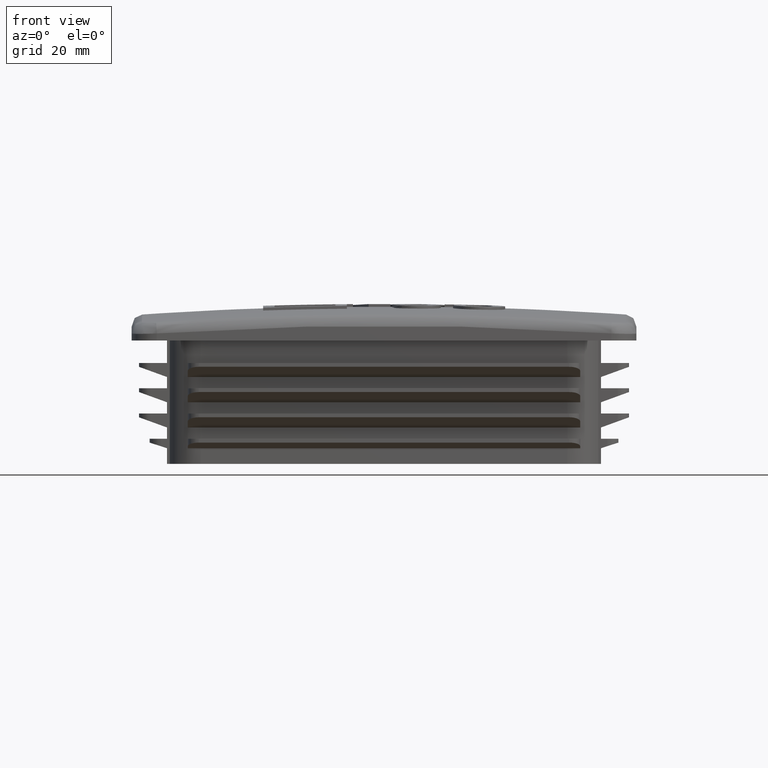
[diagram: clean part render]
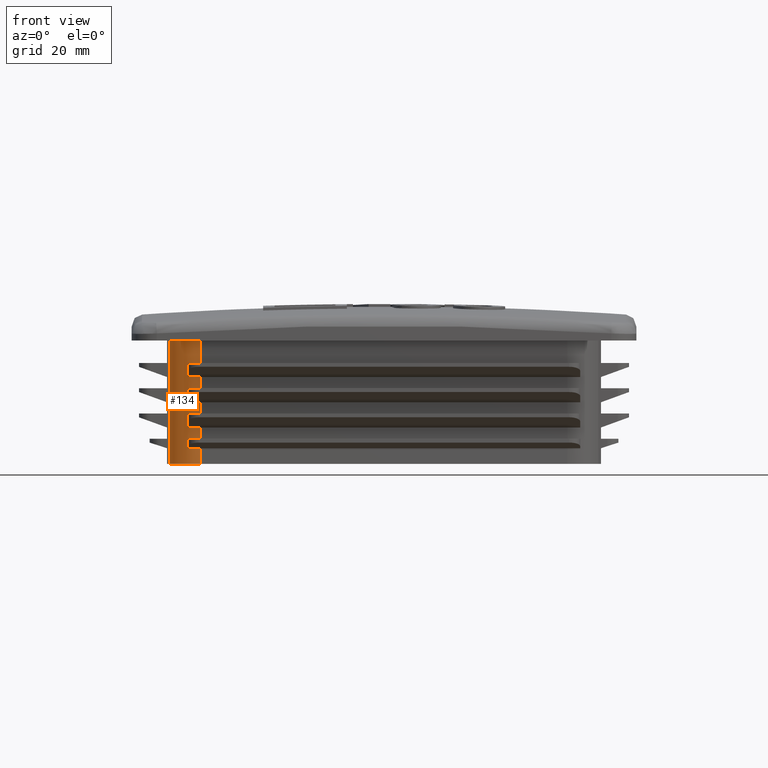
[diagram: same view with one face highlighted and labeled with its STEP entity id]
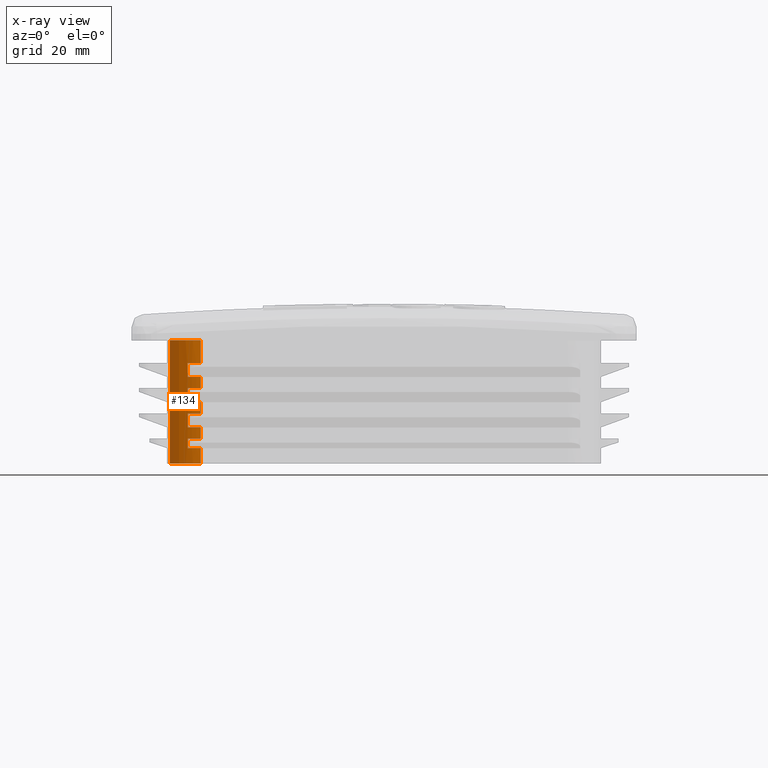
[diagram: x-ray of the same camera — body ghosted, the highlighted face saturated]
A machine part, front view. The second image highlights one B-rep face of the part: STEP entity #134.
The next image is the same camera in x-ray: the body ghosted, the highlighted face saturated — about 0% of this face is hidden behind the body in this view.
In plain terms, the highlighted cylindrical surface (edge-blend (fillet) strip) has radius 6 mm, axis along (0, 0, -1).
Its self-contained STEP definition (entity closure, byte-faithful):
#134 = ADVANCED_FACE( '', ( #441 ), #442, .T. );
#441 = FACE_OUTER_BOUND( '', #2016, .T. );
#442 = CYLINDRICAL_SURFACE( '', #2017, 6.00000000000000 );
#2016 = EDGE_LOOP( '', ( #3985, #3986, #3987, #3988, #3989, #3990, #3991, #3992, #3993, #3994, #3995, #3996, #3997, #3998, #3999, #4000, #4001, #4002, #4003, #4004 ) );
#2017 = AXIS2_PLACEMENT_3D( '', #4005, #4006, #4007 );
#3985 = ORIENTED_EDGE( '', *, *, #5591, .F. );
#3986 = ORIENTED_EDGE( '', *, *, #5746, .T. );
#3987 = ORIENTED_EDGE( '', *, *, #5522, .T. );
#3988 = ORIENTED_EDGE( '', *, *, #5747, .T. );
#3989 = ORIENTED_EDGE( '', *, *, #5748, .F. );
#3990 = ORIENTED_EDGE( '', *, *, #5749, .F. );
#3991 = ORIENTED_EDGE( '', *, *, #5750, .F. );
#3992 = ORIENTED_EDGE( '', *, *, #5735, .T. );
#3993 = ORIENTED_EDGE( '', *, *, #5751, .F. );
#3994 = ORIENTED_EDGE( '', *, *, #5752, .F. );
#3995 = ORIENTED_EDGE( '', *, *, #5753, .F. );
#3996 = ORIENTED_EDGE( '', *, *, #5754, .T. );
#3997 = ORIENTED_EDGE( '', *, *, #5755, .F. );
#3998 = ORIENTED_EDGE( '', *, *, #5756, .F. );
#3999 = ORIENTED_EDGE( '', *, *, #5757, .F. );
#4000 = ORIENTED_EDGE( '', *, *, #5758, .T. );
#4001 = ORIENTED_EDGE( '', *, *, #5759, .F. );
#4002 = ORIENTED_EDGE( '', *, *, #5760, .F. );
#4003 = ORIENTED_EDGE( '', *, *, #5761, .F. );
#4004 = ORIENTED_EDGE( '', *, *, #5762, .T. );
#4005 = CARTESIAN_POINT( '', ( -32.7000000000000, -32.7000000000000, 3.46944695195361E-015 ) );
#4006 = DIRECTION( '', ( 0.000000000000000, 0.000000000000000, -1.00000000000000 ) );
#4007 = DIRECTION( '', ( 0.000000000000000, -1.00000000000000, 0.000000000000000 ) );
#5522 = EDGE_CURVE( '', #6182, #6180, #6183, .T. );
#5591 = EDGE_CURVE( '', #6301, #6303, #6304, .T. );
#5735 = EDGE_CURVE( '', #6552, #6554, #6556, .T. );
#5746 = EDGE_CURVE( '', #6301, #6182, #6575, .T. );
#5747 = EDGE_CURVE( '', #6180, #6576, #6577, .T. );
#5748 = EDGE_CURVE( '', #6578, #6576, #6579, .F. );
#5749 = EDGE_CURVE( '', #6580, #6578, #6581, .F. );
#5750 = EDGE_CURVE( '', #6552, #6580, #6582, .F. );
#5751 = EDGE_CURVE( '', #6583, #6554, #6584, .F. );
#5752 = EDGE_CURVE( '', #6585, #6583, #6586, .F. );
#5753 = EDGE_CURVE( '', #6587, #6585, #6588, .F. );
#5754 = EDGE_CURVE( '', #6587, #6589, #6590, .T. );
#5755 = EDGE_CURVE( '', #6591, #6589, #6592, .F. );
#5756 = EDGE_CURVE( '', #6593, #6591, #6594, .F. );
#5757 = EDGE_CURVE( '', #6595, #6593, #6596, .F. );
#5758 = EDGE_CURVE( '', #6595, #6597, #6598, .T. );
#5759 = EDGE_CURVE( '', #6599, #6597, #6600, .F. );
#5760 = EDGE_CURVE( '', #6601, #6599, #6602, .F. );
#5761 = EDGE_CURVE( '', #6603, #6601, #6604, .F. );
#5762 = EDGE_CURVE( '', #6603, #6303, #6605, .T. );
#6180 = VERTEX_POINT( '', #7243 );
#6182 = VERTEX_POINT( '', #7246 );
#6183 = CIRCLE( '', #7247, 6.00000000000000 );
#6301 = VERTEX_POINT( '', #7999 );
#6303 = VERTEX_POINT( '', #8002 );
#6304 = CIRCLE( '', #8003, 6.00000000000000 );
#6552 = VERTEX_POINT( '', #8943 );
#6554 = VERTEX_POINT( '', #8946 );
#6556 = LINE( '', #8949, #8950 );
#6575 = LINE( '', #8979, #8980 );
#6576 = VERTEX_POINT( '', #8981 );
#6577 = LINE( '', #8982, #8983 );
#6578 = VERTEX_POINT( '', #8984 );
#6579 = CIRCLE( '', #8985, 6.00000000000000 );
#6580 = VERTEX_POINT( '', #8986 );
#6581 = LINE( '', #8987, #8988 );
#6582 = CIRCLE( '', #8989, 6.00000000000000 );
#6583 = VERTEX_POINT( '', #8990 );
#6584 = CIRCLE( '', #8991, 6.00000000000000 );
#6585 = VERTEX_POINT( '', #8992 );
#6586 = LINE( '', #8993, #8994 );
#6587 = VERTEX_POINT( '', #8995 );
#6588 = CIRCLE( '', #8996, 6.00000000000000 );
#6589 = VERTEX_POINT( '', #8997 );
#6590 = LINE( '', #8998, #8999 );
#6591 = VERTEX_POINT( '', #9000 );
#6592 = CIRCLE( '', #9001, 6.00000000000000 );
#6593 = VERTEX_POINT( '', #9002 );
#6594 = LINE( '', #9003, #9004 );
#6595 = VERTEX_POINT( '', #9005 );
#6596 = CIRCLE( '', #9006, 6.00000000000000 );
#6597 = VERTEX_POINT( '', #9007 );
#6598 = LINE( '', #9008, #9009 );
#6599 = VERTEX_POINT( '', #9010 );
#6600 = CIRCLE( '', #9011, 6.00000000000000 );
#6601 = VERTEX_POINT( '', #9012 );
#6602 = LINE( '', #9013, #9014 );
#6603 = VERTEX_POINT( '', #9015 );
#6604 = CIRCLE( '', #9016, 6.00000000000000 );
#6605 = LINE( '', #9017, #9018 );
#7243 = CARTESIAN_POINT( '', ( -32.7000000000000, -38.7000000000000, 3.46944695195361E-015 ) );
#7246 = CARTESIAN_POINT( '', ( -38.1999999999999, -35.0979157616565, 3.46944695195361E-015 ) );
#7247 = AXIS2_PLACEMENT_3D( '', #10758, #10759, #10760 );
#7999 = CARTESIAN_POINT( '', ( -38.1999999999999, -35.0979157616565, 22.0000000000000 ) );
#8002 = CARTESIAN_POINT( '', ( -32.7000000000000, -38.7000000000000, 22.0000000000000 ) );
#8003 = AXIS2_PLACEMENT_3D( '', #10854, #10855, #10856 );
#8943 = CARTESIAN_POINT( '', ( -32.7000000000000, -38.7000000000000, 4.49999999999999 ) );
#8946 = CARTESIAN_POINT( '', ( -32.7000000000000, -38.7000000000000, 6.50000000000002 ) );
#8949 = CARTESIAN_POINT( '', ( -32.7000000000000, -38.7000000000000, 3.46944695195361E-015 ) );
#8950 = VECTOR( '', #10989, 1000.00000000000 );
#8979 = CARTESIAN_POINT( '', ( -38.1999999999999, -35.0979157616565, 22.0000000000000 ) );
#8980 = VECTOR( '', #11000, 1000.00000000000 );
#8981 = CARTESIAN_POINT( '', ( -32.7000000000000, -38.7000000000000, 2.80000000000000 ) );
#8982 = CARTESIAN_POINT( '', ( -32.7000000000000, -38.7000000000000, 3.46944695195361E-015 ) );
#8983 = VECTOR( '', #11001, 1000.00000000000 );
#8984 = CARTESIAN_POINT( '', ( -35.0000000000000, -38.2416604009990, 2.79999999999999 ) );
#8985 = AXIS2_PLACEMENT_3D( '', #11002, #11003, #11004 );
#8986 = CARTESIAN_POINT( '', ( -35.0000000000000, -38.2416604009990, 4.49999999999999 ) );
#8987 = CARTESIAN_POINT( '', ( -35.0000000000000, -38.2416604009990, 3.46944695195361E-015 ) );
#8988 = VECTOR( '', #11005, 1000.00000000000 );
#8989 = AXIS2_PLACEMENT_3D( '', #11006, #11007, #11008 );
#8990 = CARTESIAN_POINT( '', ( -35.0000000000000, -38.2416604009990, 6.49999999999999 ) );
#8991 = AXIS2_PLACEMENT_3D( '', #11009, #11010, #11011 );
#8992 = CARTESIAN_POINT( '', ( -35.0000000000000, -38.2416604009990, 9.00000000000000 ) );
#8993 = CARTESIAN_POINT( '', ( -35.0000000000000, -38.2416604009990, 3.46944695195361E-015 ) );
#8994 = VECTOR( '', #11012, 1000.00000000000 );
#8995 = CARTESIAN_POINT( '', ( -32.7000000000000, -38.7000000000000, 9.00000000000000 ) );
#8996 = AXIS2_PLACEMENT_3D( '', #11013, #11014, #11015 );
#8997 = CARTESIAN_POINT( '', ( -32.7000000000000, -38.7000000000000, 11.0000000000000 ) );
#8998 = CARTESIAN_POINT( '', ( -32.7000000000000, -38.7000000000000, 3.46944695195361E-015 ) );
#8999 = VECTOR( '', #11016, 1000.00000000000 );
#9000 = CARTESIAN_POINT( '', ( -35.0000000000000, -38.2416604009990, 11.0000000000000 ) );
#9001 = AXIS2_PLACEMENT_3D( '', #11017, #11018, #11019 );
#9002 = CARTESIAN_POINT( '', ( -35.0000000000000, -38.2416604009990, 13.5000000000000 ) );
#9003 = CARTESIAN_POINT( '', ( -35.0000000000000, -38.2416604009990, 3.46944695195361E-015 ) );
#9004 = VECTOR( '', #11020, 1000.00000000000 );
#9005 = CARTESIAN_POINT( '', ( -32.7000000000000, -38.7000000000000, 13.5000000000000 ) );
#9006 = AXIS2_PLACEMENT_3D( '', #11021, #11022, #11023 );
#9007 = CARTESIAN_POINT( '', ( -32.7000000000000, -38.7000000000000, 15.5000000000000 ) );
#9008 = CARTESIAN_POINT( '', ( -32.7000000000000, -38.7000000000000, 3.46944695195361E-015 ) );
#9009 = VECTOR( '', #11024, 1000.00000000000 );
#9010 = CARTESIAN_POINT( '', ( -35.0000000000000, -38.2416604009990, 15.5000000000000 ) );
#9011 = AXIS2_PLACEMENT_3D( '', #11025, #11026, #11027 );
#9012 = CARTESIAN_POINT( '', ( -35.0000000000000, -38.2416604009990, 18.0000000000000 ) );
#9013 = CARTESIAN_POINT( '', ( -35.0000000000000, -38.2416604009990, 3.46944695195361E-015 ) );
#9014 = VECTOR( '', #11028, 1000.00000000000 );
#9015 = CARTESIAN_POINT( '', ( -32.7000000000000, -38.7000000000000, 18.0000000000000 ) );
#9016 = AXIS2_PLACEMENT_3D( '', #11029, #11030, #11031 );
#9017 = CARTESIAN_POINT( '', ( -32.7000000000000, -38.7000000000000, 3.46944695195361E-015 ) );
#9018 = VECTOR( '', #11032, 1000.00000000000 );
#10758 = CARTESIAN_POINT( '', ( -32.7000000000000, -32.7000000000000, 3.46944695195361E-015 ) );
#10759 = DIRECTION( '', ( 0.000000000000000, 0.000000000000000, 1.00000000000000 ) );
#10760 = DIRECTION( '', ( -1.00000000000000, 0.000000000000000, 0.000000000000000 ) );
#10854 = CARTESIAN_POINT( '', ( -32.7000000000000, -32.7000000000000, 22.0000000000000 ) );
#10855 = DIRECTION( '', ( 0.000000000000000, 0.000000000000000, 1.00000000000000 ) );
#10856 = DIRECTION( '', ( -1.00000000000000, 0.000000000000000, 0.000000000000000 ) );
#10989 = DIRECTION( '', ( 0.000000000000000, 0.000000000000000, 1.00000000000000 ) );
#11000 = DIRECTION( '', ( 0.000000000000000, 0.000000000000000, -1.00000000000000 ) );
#11001 = DIRECTION( '', ( 0.000000000000000, 0.000000000000000, 1.00000000000000 ) );
#11002 = CARTESIAN_POINT( '', ( -32.7000000000000, -32.7000000000000, 2.79999999999999 ) );
#11003 = DIRECTION( '', ( -1.14715425466256E-031, -6.69494841509799E-017, -1.00000000000000 ) );
#11004 = DIRECTION( '', ( 0.000000000000000, 1.00000000000000, -6.69494841509799E-017 ) );
#11005 = DIRECTION( '', ( 0.000000000000000, 0.000000000000000, 1.00000000000000 ) );
#11006 = CARTESIAN_POINT( '', ( -32.7000000000000, -32.7000000000000, 4.49999999999999 ) );
#11007 = DIRECTION( '', ( 1.14715425466256E-031, 6.69494841509799E-017, 1.00000000000000 ) );
#11008 = DIRECTION( '', ( 0.000000000000000, -1.00000000000000, 6.69494841509799E-017 ) );
#11009 = CARTESIAN_POINT( '', ( -32.7000000000000, -32.7000000000000, 6.49999999999999 ) );
#11010 = DIRECTION( '', ( -1.14715425466256E-031, -6.69494841509799E-017, -1.00000000000000 ) );
#11011 = DIRECTION( '', ( 0.000000000000000, 1.00000000000000, -6.69494841509799E-017 ) );
#11012 = DIRECTION( '', ( 0.000000000000000, 0.000000000000000, 1.00000000000000 ) );
#11013 = CARTESIAN_POINT( '', ( -32.7000000000000, -32.7000000000000, 9.00000000000000 ) );
#11014 = DIRECTION( '', ( 1.14715425466256E-031, 6.69494841509799E-017, 1.00000000000000 ) );
#11015 = DIRECTION( '', ( 0.000000000000000, -1.00000000000000, 6.69494841509799E-017 ) );
#11016 = DIRECTION( '', ( 0.000000000000000, 0.000000000000000, 1.00000000000000 ) );
#11017 = CARTESIAN_POINT( '', ( -32.7000000000000, -32.7000000000000, 11.0000000000000 ) );
#11018 = DIRECTION( '', ( -1.14715425466256E-031, -6.69494841509799E-017, -1.00000000000000 ) );
#11019 = DIRECTION( '', ( 0.000000000000000, 1.00000000000000, -6.69494841509799E-017 ) );
#11020 = DIRECTION( '', ( 0.000000000000000, 0.000000000000000, 1.00000000000000 ) );
#11021 = CARTESIAN_POINT( '', ( -32.7000000000000, -32.7000000000000, 13.5000000000000 ) );
#11022 = DIRECTION( '', ( 1.14715425466256E-031, 6.69494841509799E-017, 1.00000000000000 ) );
#11023 = DIRECTION( '', ( 0.000000000000000, -1.00000000000000, 6.69494841509799E-017 ) );
#11024 = DIRECTION( '', ( 0.000000000000000, 0.000000000000000, 1.00000000000000 ) );
#11025 = CARTESIAN_POINT( '', ( -32.7000000000000, -32.7000000000000, 15.5000000000000 ) );
#11026 = DIRECTION( '', ( -1.14715425466256E-031, -6.69494841509799E-017, -1.00000000000000 ) );
#11027 = DIRECTION( '', ( 0.000000000000000, 1.00000000000000, -6.69494841509799E-017 ) );
#11028 = DIRECTION( '', ( 0.000000000000000, 0.000000000000000, 1.00000000000000 ) );
#11029 = CARTESIAN_POINT( '', ( -32.7000000000000, -32.7000000000000, 18.0000000000000 ) );
#11030 = DIRECTION( '', ( 1.14715425466256E-031, 6.69494841509799E-017, 1.00000000000000 ) );
#11031 = DIRECTION( '', ( 0.000000000000000, -1.00000000000000, 6.69494841509799E-017 ) );
#11032 = DIRECTION( '', ( 0.000000000000000, 0.000000000000000, 1.00000000000000 ) );